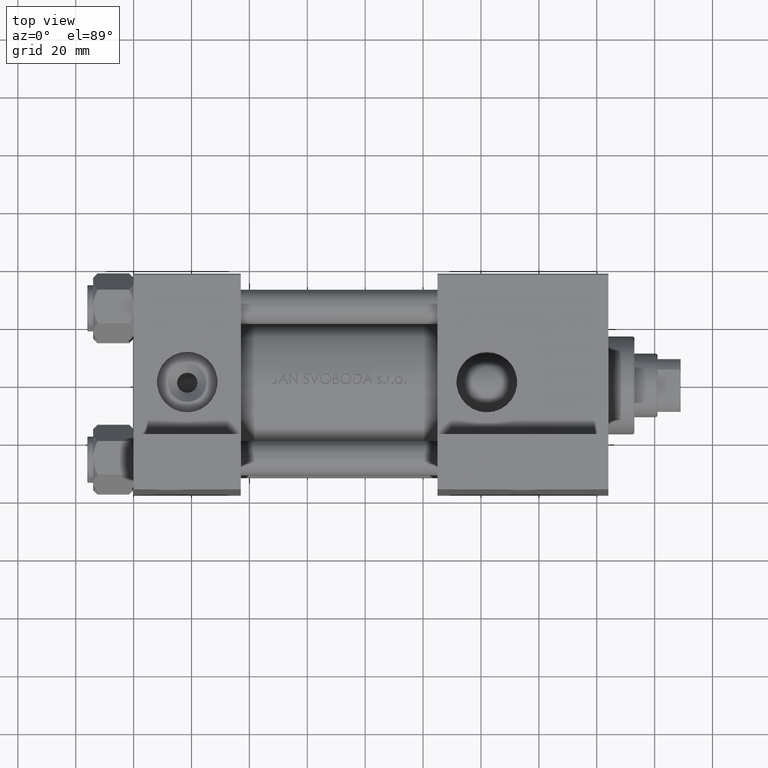
[diagram: clean part render]
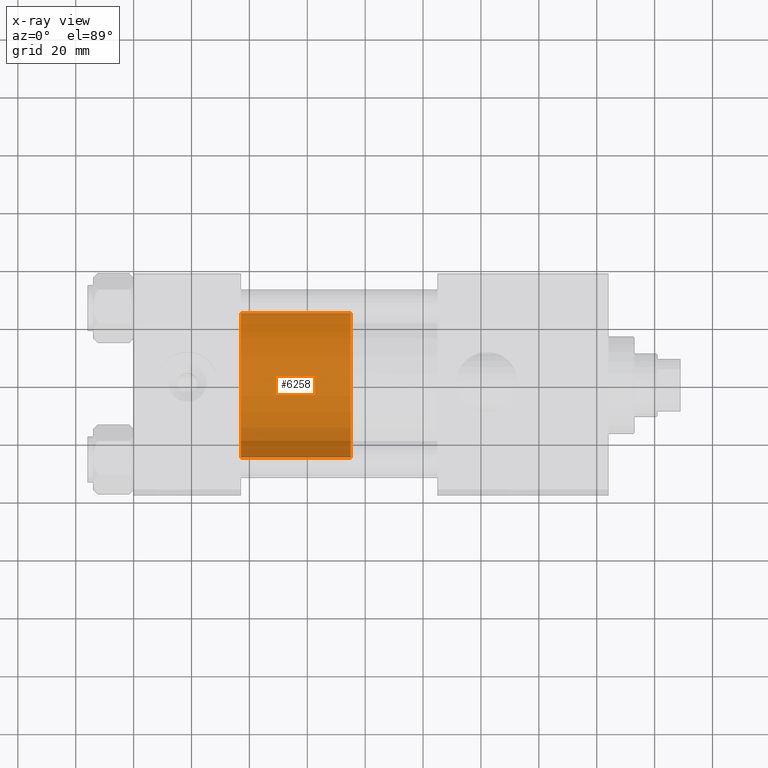
[diagram: x-ray — body ghosted, one internal face saturated and labeled with its STEP entity id]
A machine part, top view, then the same camera in x-ray: the body is ghosted and one INTERNAL B-rep face — a face not visible from any outside direction — is saturated and labeled: STEP entity #6258.
In plain terms, the highlighted cylindrical surface (partial cylindrical patch) has radius 25 mm, axis along (-1, 0, 0).
Its self-contained STEP definition (entity closure, byte-faithful):
#1572 = AXIS2_PLACEMENT_3D ( 'NONE', #29379, #6219, #13948 ) ;
#2713 = EDGE_CURVE ( 'NONE', #23100, #28694, #12715, .T. ) ;
#4368 = VECTOR ( 'NONE', #23870, 1000.000000000000000 ) ;
#6121 = EDGE_CURVE ( 'NONE', #11101, #18271, #43025, .T. ) ;
#6219 = DIRECTION ( 'NONE',  ( 0.000000000000000000, 0.000000000000000000, 1.000000000000000000 ) ) ;
#6258 = ADVANCED_FACE ( 'NONE', ( #7610 ), #22809, .T. ) ;
#7610 = FACE_OUTER_BOUND ( 'NONE', #9475, .T. ) ;
#7989 = CARTESIAN_POINT ( 'NONE',  ( 25.00000000000000000, 3.061616997868383043E-15, 0.000000000000000000 ) ) ;
#9475 = EDGE_LOOP ( 'NONE', ( #30302, #38543, #28483, #47489 ) ) ;
#11101 = VERTEX_POINT ( 'NONE', #7989 ) ;
#12163 = CARTESIAN_POINT ( 'NONE',  ( -25.00000000000000000, 0.000000000000000000, 38.00000000000000000 ) ) ;
#12715 = CIRCLE ( 'NONE', #1572, 25.00000000000000000 ) ;
#13948 = DIRECTION ( 'NONE',  ( 1.000000000000000000, 0.000000000000000000, 0.000000000000000000 ) ) ;
#17594 = AXIS2_PLACEMENT_3D ( 'NONE', #46516, #39041, #20117 ) ;
#18271 = VERTEX_POINT ( 'NONE', #35213 ) ;
#20117 = DIRECTION ( 'NONE',  ( 1.000000000000000000, 0.000000000000000000, 0.000000000000000000 ) ) ;
#22809 = CYLINDRICAL_SURFACE ( 'NONE', #37475, 25.00000000000000000 ) ;
#23100 = VERTEX_POINT ( 'NONE', #33325 ) ;
#23870 = DIRECTION ( 'NONE',  ( -0.000000000000000000, -0.000000000000000000, -1.000000000000000000 ) ) ;
#28483 = ORIENTED_EDGE ( 'NONE', *, *, #6121, .T. ) ;
#28694 = VERTEX_POINT ( 'NONE', #35568 ) ;
#28970 = LINE ( 'NONE', #44649, #45035 ) ;
#29379 = CARTESIAN_POINT ( 'NONE',  ( 0.000000000000000000, 0.000000000000000000, 38.00000000000000000 ) ) ;
#29712 = DIRECTION ( 'NONE',  ( -0.000000000000000000, -0.000000000000000000, -1.000000000000000000 ) ) ;
#30302 = ORIENTED_EDGE ( 'NONE', *, *, #2713, .F. ) ;
#33325 = CARTESIAN_POINT ( 'NONE',  ( 25.00000000000000000, 3.061616997868383043E-15, 38.00000000000000000 ) ) ;
#35213 = CARTESIAN_POINT ( 'NONE',  ( -25.00000000000000000, 0.000000000000000000, 0.000000000000000000 ) ) ;
#35568 = CARTESIAN_POINT ( 'NONE',  ( -25.00000000000000000, 0.000000000000000000, 38.00000000000000000 ) ) ;
#37248 = CARTESIAN_POINT ( 'NONE',  ( 0.000000000000000000, 0.000000000000000000, 38.00000000000000000 ) ) ;
#37475 = AXIS2_PLACEMENT_3D ( 'NONE', #37248, #48951, #48451 ) ;
#38543 = ORIENTED_EDGE ( 'NONE', *, *, #43536, .T. ) ;
#39041 = DIRECTION ( 'NONE',  ( 0.000000000000000000, 0.000000000000000000, 1.000000000000000000 ) ) ;
#39894 = EDGE_CURVE ( 'NONE', #28694, #18271, #46277, .T. ) ;
#43025 = CIRCLE ( 'NONE', #17594, 25.00000000000000000 ) ;
#43536 = EDGE_CURVE ( 'NONE', #23100, #11101, #28970, .T. ) ;
#44649 = CARTESIAN_POINT ( 'NONE',  ( 25.00000000000000000, 3.061616997868383043E-15, 38.00000000000000000 ) ) ;
#45035 = VECTOR ( 'NONE', #29712, 1000.000000000000000 ) ;
#46277 = LINE ( 'NONE', #12163, #4368 ) ;
#46516 = CARTESIAN_POINT ( 'NONE',  ( 0.000000000000000000, 0.000000000000000000, 0.000000000000000000 ) ) ;
#47489 = ORIENTED_EDGE ( 'NONE', *, *, #39894, .F. ) ;
#48451 = DIRECTION ( 'NONE',  ( -1.000000000000000000, 0.000000000000000000, 0.000000000000000000 ) ) ;
#48951 = DIRECTION ( 'NONE',  ( -0.000000000000000000, -0.000000000000000000, -1.000000000000000000 ) ) ;